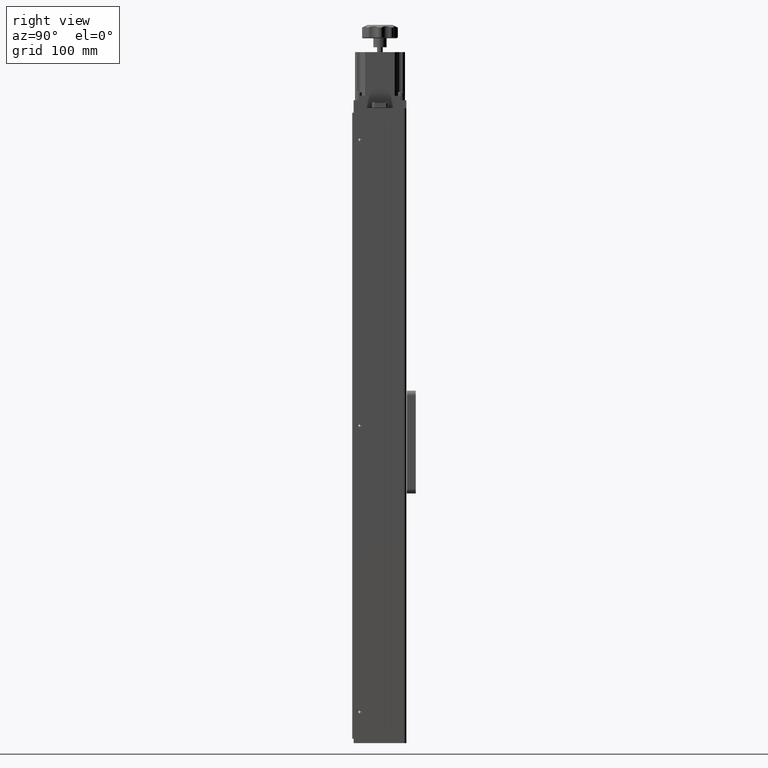
[diagram: clean part render]
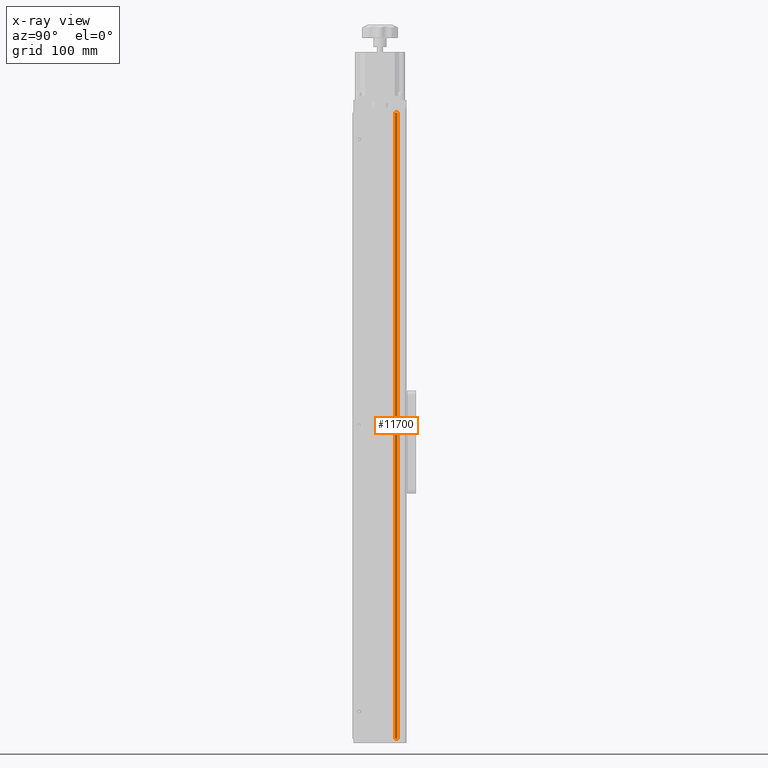
[diagram: x-ray — body ghosted, one internal face saturated and labeled with its STEP entity id]
A machine part, right view, then the same camera in x-ray: the body is ghosted and one INTERNAL B-rep face — a face not visible from any outside direction — is saturated and labeled: STEP entity #11700.
In plain terms, the highlighted planar face has unit normal (-1, 0, 0).
Its self-contained STEP definition (entity closure, byte-faithful):
#412 = CARTESIAN_POINT ( 'NONE',  ( 65.08919164396000667, 40.08234937935210951, 350.0000000000000000 ) ) ;
#544 = VECTOR ( 'NONE', #566, 1000.000000000000000 ) ;
#566 = DIRECTION ( 'NONE',  ( -0.000000000000000000, -0.000000000000000000, -1.000000000000000000 ) ) ;
#1176 = LINE ( 'NONE', #17703, #27788 ) ;
#1867 = EDGE_CURVE ( 'NONE', #19465, #13217, #1176, .T. ) ;
#2812 = ORIENTED_EDGE ( 'NONE', *, *, #28428, .T. ) ;
#2833 = CARTESIAN_POINT ( 'NONE',  ( 65.08919164396000667, 37.08234937935210240, -350.0000000000000000 ) ) ;
#3570 = VERTEX_POINT ( 'NONE', #22909 ) ;
#4405 = LINE ( 'NONE', #4708, #16141 ) ;
#4708 = CARTESIAN_POINT ( 'NONE',  ( 65.08919164396000667, 37.08234937935210240, -350.0000000000000000 ) ) ;
#5485 = CARTESIAN_POINT ( 'NONE',  ( 65.08919164396000667, 37.08234937935210240, 350.0000000000000000 ) ) ;
#7344 = FACE_OUTER_BOUND ( 'NONE', #10439, .T. ) ;
#9805 = PLANE ( 'NONE',  #17032 ) ;
#10298 = EDGE_CURVE ( 'NONE', #19465, #27454, #24961, .T. ) ;
#10439 = EDGE_LOOP ( 'NONE', ( #2812, #17087, #12243, #20436 ) ) ;
#11700 = ADVANCED_FACE ( 'NONE', ( #7344 ), #9805, .F. ) ;
#12243 = ORIENTED_EDGE ( 'NONE', *, *, #1867, .F. ) ;
#13217 = VERTEX_POINT ( 'NONE', #17511 ) ;
#16141 = VECTOR ( 'NONE', #28334, 1000.000000000000000 ) ;
#17032 = AXIS2_PLACEMENT_3D ( 'NONE', #5485, #22005, #24315 ) ;
#17087 = ORIENTED_EDGE ( 'NONE', *, *, #19283, .F. ) ;
#17511 = CARTESIAN_POINT ( 'NONE',  ( 65.08919164396000667, 40.08234937935210951, 350.0000000000000000 ) ) ;
#17553 = DIRECTION ( 'NONE',  ( -0.000000000000000000, -0.000000000000000000, -1.000000000000000000 ) ) ;
#17703 = CARTESIAN_POINT ( 'NONE',  ( 65.08919164396000667, 37.08234937935210240, 350.0000000000000000 ) ) ;
#19111 = LINE ( 'NONE', #412, #544 ) ;
#19283 = EDGE_CURVE ( 'NONE', #13217, #3570, #19111, .T. ) ;
#19465 = VERTEX_POINT ( 'NONE', #26982 ) ;
#19863 = CARTESIAN_POINT ( 'NONE',  ( 65.08919164396000667, 37.08234937935210240, 350.0000000000000000 ) ) ;
#20436 = ORIENTED_EDGE ( 'NONE', *, *, #10298, .T. ) ;
#22005 = DIRECTION ( 'NONE',  ( -1.000000000000000000, 0.000000000000000000, 0.000000000000000000 ) ) ;
#22909 = CARTESIAN_POINT ( 'NONE',  ( 65.08919164396000667, 40.08234937935210951, -350.0000000000000000 ) ) ;
#24315 = DIRECTION ( 'NONE',  ( 0.000000000000000000, 0.000000000000000000, 1.000000000000000000 ) ) ;
#24961 = LINE ( 'NONE', #19863, #27825 ) ;
#25266 = DIRECTION ( 'NONE',  ( 0.000000000000000000, 1.000000000000000000, 0.000000000000000000 ) ) ;
#26982 = CARTESIAN_POINT ( 'NONE',  ( 65.08919164396000667, 37.08234937935210240, 350.0000000000000000 ) ) ;
#27454 = VERTEX_POINT ( 'NONE', #2833 ) ;
#27788 = VECTOR ( 'NONE', #25266, 1000.000000000000000 ) ;
#27825 = VECTOR ( 'NONE', #17553, 1000.000000000000000 ) ;
#28334 = DIRECTION ( 'NONE',  ( 0.000000000000000000, 1.000000000000000000, 0.000000000000000000 ) ) ;
#28428 = EDGE_CURVE ( 'NONE', #27454, #3570, #4405, .T. ) ;